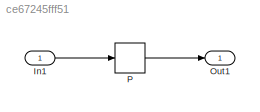
MODEL slx_ce67245fff51
KIND model
CONFIG AbsTol = auto
CONFIG EnableMultiTasking = off
CONFIG FixedStep = auto
CONFIG MaxStep = auto
CONFIG MinStep = auto
CONFIG RelTol = 1e-3
CONFIG SampleTimeConstraint = Unconstrained
CONFIG Solver = FixedStepDiscrete
CONFIG SolverName = FixedStepDiscrete
CONFIG StartTime = 0.0
CONFIG StopTime = 10.0
BLOCK [Inport] In1
  IconDisplay = Port number
BLOCK [Outport] Out1
  IconDisplay = Port number
BLOCK [DiscretePulseGenerator] P
  Period = 10
  Ports = [1, 1]
  PulseType = Time based
  PulseWidth = 4
  SampleTime = 0.1
  TimeSource = Use external signal
  VectorParams1D = off
LINE In1:1 -> P:1
LINE P:1 -> Out1:1
